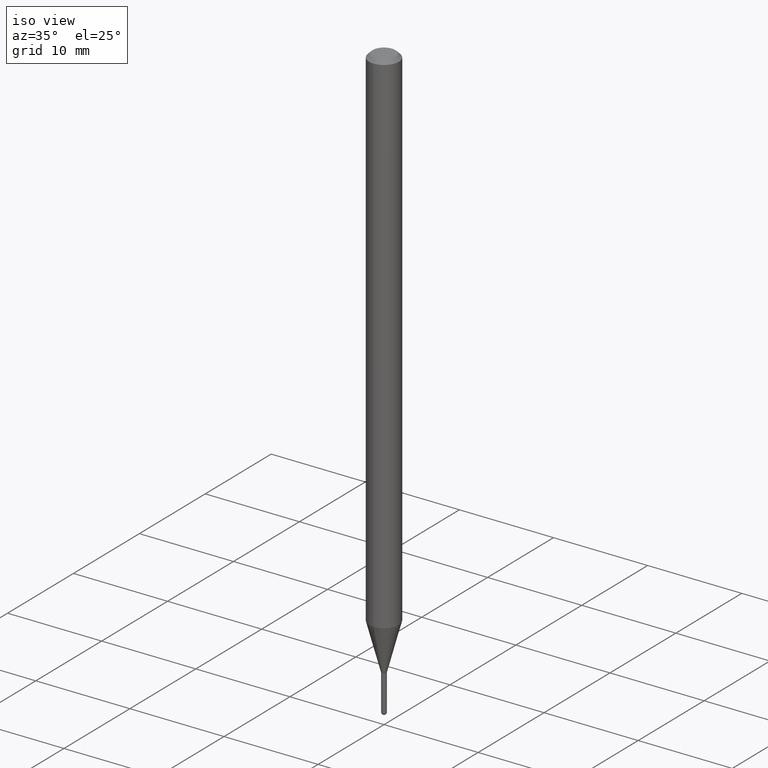
[diagram: clean part render]
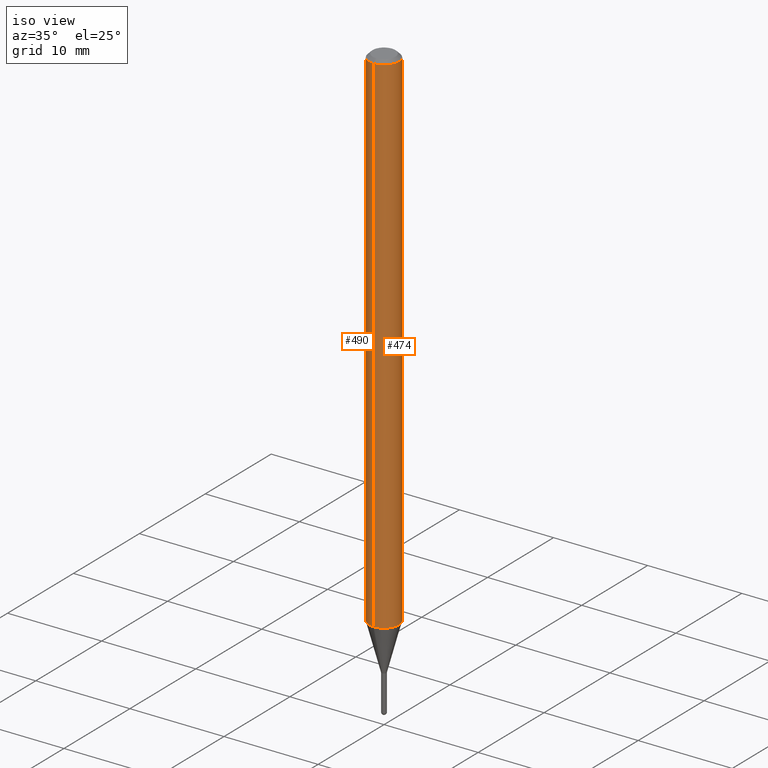
[diagram: same view with one multi-face feature highlighted, each face labeled with its STEP entity id]
A machine part, iso view. The highlighted faces form ONE feature: a constant-radius fillet chain: 2 tangent blend faces with common blend radius 1.5875 mm. The faces share edges in the B-rep.
Their STEP definitions:
[1] entity #474 (Cylinder):
#20 = DIRECTION ( 'NONE',  ( -2.445532791204975486E-29, 3.491389708652934978E-15, 1.000000000000000000 ) ) ;
#25 = CARTESIAN_POINT ( 'NONE',  ( 4.440892098501148782E-16, 0.06249999999999250599, -2.144067332602639375 ) ) ;
#28 = LINE ( 'NONE', #115, #121 ) ;
#35 = EDGE_LOOP ( 'NONE', ( #265, #368, #455, #375 ) ) ;
#37 = CIRCLE ( 'NONE', #162, 0.06250000000000000000 ) ;
#44 = CARTESIAN_POINT ( 'NONE',  ( -4.364351673553393088E-16, -0.06250000000000749401, -2.144067332602638931 ) ) ;
#86 = DIRECTION ( 'NONE',  ( -6.982962677686265922E-15, -1.000000000000000000, 3.483106191921935554E-15 ) ) ;
#89 = FACE_OUTER_BOUND ( 'NONE', #35, .T. ) ;
#115 = CARTESIAN_POINT ( 'NONE',  ( -4.364351673553916201E-16, -0.06250000000000000000, 2.182118567908084361E-16 ) ) ;
#121 = VECTOR ( 'NONE', #199, 39.37007874015748143 ) ;
#148 = VERTEX_POINT ( 'NONE', #44 ) ;
#161 = CARTESIAN_POINT ( 'NONE',  ( -4.364351673553912750E-16, -0.06250000000000005551, -0.01499999999999984852 ) ) ;
#162 = AXIS2_PLACEMENT_3D ( 'NONE', #391, #20, #420 ) ;
#172 = CARTESIAN_POINT ( 'NONE',  ( 3.668299186807479747E-31, -5.237084562979425566E-17, -0.01500000000000006710 ) ) ;
#180 = CARTESIAN_POINT ( 'NONE',  ( 4.440892098500625669E-16, 0.06250000000000000000, -2.182118567908084361E-16 ) ) ;
#199 = DIRECTION ( 'NONE',  ( -2.445532791204975206E-29, 3.491389708652934978E-15, 1.000000000000000000 ) ) ;
#226 = VERTEX_POINT ( 'NONE', #25 ) ;
#241 = VECTOR ( 'NONE', #408, 39.37007874015748143 ) ;
#254 = DIRECTION ( 'NONE',  ( -6.982962677686265922E-15, -1.000000000000000000, 3.491389708652934978E-15 ) ) ;
#255 = CYLINDRICAL_SURFACE ( 'NONE', #511, 0.06250000000000000000 ) ;
#264 = VERTEX_POINT ( 'NONE', #161 ) ;
#265 = ORIENTED_EDGE ( 'NONE', *, *, #508, .T. ) ;
#271 = CIRCLE ( 'NONE', #342, 0.06250000000000000000 ) ;
#288 = CARTESIAN_POINT ( 'NONE',  ( 4.440892098501153712E-16, 0.06249999999999995143, -0.01500000000000028394 ) ) ;
#326 = EDGE_CURVE ( 'NONE', #226, #462, #327, .T. ) ;
#327 = LINE ( 'NONE', #180, #241 ) ;
#342 = AXIS2_PLACEMENT_3D ( 'NONE', #172, #434, #86 ) ;
#343 = DIRECTION ( 'NONE',  ( -2.445532791204975486E-29, 3.491389708652934978E-15, 1.000000000000000000 ) ) ;
#366 = CARTESIAN_POINT ( 'NONE',  ( 0.000000000000000000, 0.000000000000000000, 0.000000000000000000 ) ) ;
#368 = ORIENTED_EDGE ( 'NONE', *, *, #326, .T. ) ;
#375 = ORIENTED_EDGE ( 'NONE', *, *, #499, .F. ) ;
#391 = CARTESIAN_POINT ( 'NONE',  ( 5.243386968431138412E-29, -7.485774619707804452E-15, -2.144067332602638931 ) ) ;
#408 = DIRECTION ( 'NONE',  ( -2.445532791204975206E-29, 3.491389708652934978E-15, 1.000000000000000000 ) ) ;
#420 = DIRECTION ( 'NONE',  ( -6.982962677686265922E-15, -1.000000000000000000, 4.370956789862821150E-15 ) ) ;
#434 = DIRECTION ( 'NONE',  ( -2.445532791204975486E-29, 3.491389708652934978E-15, 1.000000000000000000 ) ) ;
#455 = ORIENTED_EDGE ( 'NONE', *, *, #461, .F. ) ;
#461 = EDGE_CURVE ( 'NONE', #264, #462, #271, .T. ) ;
#462 = VERTEX_POINT ( 'NONE', #288 ) ;
#474 = ADVANCED_FACE ( 'NONE', ( #89 ), #255, .T. ) ;
#499 = EDGE_CURVE ( 'NONE', #148, #264, #28, .T. ) ;
#508 = EDGE_CURVE ( 'NONE', #148, #226, #37, .T. ) ;
#511 = AXIS2_PLACEMENT_3D ( 'NONE', #366, #343, #254 ) ;
[2] entity #490 (Cylinder):
#10 = EDGE_CURVE ( 'NONE', #462, #264, #302, .T. ) ;
#24 = FACE_OUTER_BOUND ( 'NONE', #493, .T. ) ;
#25 = CARTESIAN_POINT ( 'NONE',  ( 4.440892098501148782E-16, 0.06249999999999250599, -2.144067332602639375 ) ) ;
#28 = LINE ( 'NONE', #115, #121 ) ;
#31 = DIRECTION ( 'NONE',  ( -2.445532791204975486E-29, 3.491389708652934978E-15, 1.000000000000000000 ) ) ;
#44 = CARTESIAN_POINT ( 'NONE',  ( -4.364351673553393088E-16, -0.06250000000000749401, -2.144067332602638931 ) ) ;
#51 = ORIENTED_EDGE ( 'NONE', *, *, #85, .T. ) ;
#74 = AXIS2_PLACEMENT_3D ( 'NONE', #77, #466, #126 ) ;
#77 = CARTESIAN_POINT ( 'NONE',  ( 3.668299186807479747E-31, -5.237084562979425566E-17, -0.01500000000000006710 ) ) ;
#85 = EDGE_CURVE ( 'NONE', #226, #148, #340, .T. ) ;
#107 = ORIENTED_EDGE ( 'NONE', *, *, #326, .F. ) ;
#113 = DIRECTION ( 'NONE',  ( -6.982962677686265922E-15, -1.000000000000000000, 3.491389708652934978E-15 ) ) ;
#115 = CARTESIAN_POINT ( 'NONE',  ( -4.364351673553916201E-16, -0.06250000000000000000, 2.182118567908084361E-16 ) ) ;
#118 = CYLINDRICAL_SURFACE ( 'NONE', #263, 0.06250000000000000000 ) ;
#121 = VECTOR ( 'NONE', #199, 39.37007874015748143 ) ;
#126 = DIRECTION ( 'NONE',  ( -6.982962677686265922E-15, -1.000000000000000000, 3.483106191921935554E-15 ) ) ;
#136 = DIRECTION ( 'NONE',  ( -2.445532791204975486E-29, 3.491389708652934978E-15, 1.000000000000000000 ) ) ;
#137 = ORIENTED_EDGE ( 'NONE', *, *, #499, .T. ) ;
#148 = VERTEX_POINT ( 'NONE', #44 ) ;
#161 = CARTESIAN_POINT ( 'NONE',  ( -4.364351673553912750E-16, -0.06250000000000005551, -0.01499999999999984852 ) ) ;
#180 = CARTESIAN_POINT ( 'NONE',  ( 4.440892098500625669E-16, 0.06250000000000000000, -2.182118567908084361E-16 ) ) ;
#199 = DIRECTION ( 'NONE',  ( -2.445532791204975206E-29, 3.491389708652934978E-15, 1.000000000000000000 ) ) ;
#226 = VERTEX_POINT ( 'NONE', #25 ) ;
#241 = VECTOR ( 'NONE', #408, 39.37007874015748143 ) ;
#263 = AXIS2_PLACEMENT_3D ( 'NONE', #274, #31, #113 ) ;
#264 = VERTEX_POINT ( 'NONE', #161 ) ;
#274 = CARTESIAN_POINT ( 'NONE',  ( 0.000000000000000000, 0.000000000000000000, 0.000000000000000000 ) ) ;
#288 = CARTESIAN_POINT ( 'NONE',  ( 4.440892098501153712E-16, 0.06249999999999995143, -0.01500000000000028394 ) ) ;
#302 = CIRCLE ( 'NONE', #74, 0.06250000000000000000 ) ;
#321 = AXIS2_PLACEMENT_3D ( 'NONE', #367, #136, #472 ) ;
#326 = EDGE_CURVE ( 'NONE', #226, #462, #327, .T. ) ;
#327 = LINE ( 'NONE', #180, #241 ) ;
#340 = CIRCLE ( 'NONE', #321, 0.06250000000000000000 ) ;
#367 = CARTESIAN_POINT ( 'NONE',  ( 5.243386968431138412E-29, -7.485774619707804452E-15, -2.144067332602638931 ) ) ;
#408 = DIRECTION ( 'NONE',  ( -2.445532791204975206E-29, 3.491389708652934978E-15, 1.000000000000000000 ) ) ;
#452 = ORIENTED_EDGE ( 'NONE', *, *, #10, .F. ) ;
#462 = VERTEX_POINT ( 'NONE', #288 ) ;
#466 = DIRECTION ( 'NONE',  ( -2.445532791204975486E-29, 3.491389708652934978E-15, 1.000000000000000000 ) ) ;
#472 = DIRECTION ( 'NONE',  ( -6.982962677686265922E-15, -1.000000000000000000, 4.370956789862821150E-15 ) ) ;
#490 = ADVANCED_FACE ( 'NONE', ( #24 ), #118, .T. ) ;
#493 = EDGE_LOOP ( 'NONE', ( #107, #51, #137, #452 ) ) ;
#499 = EDGE_CURVE ( 'NONE', #148, #264, #28, .T. ) ;